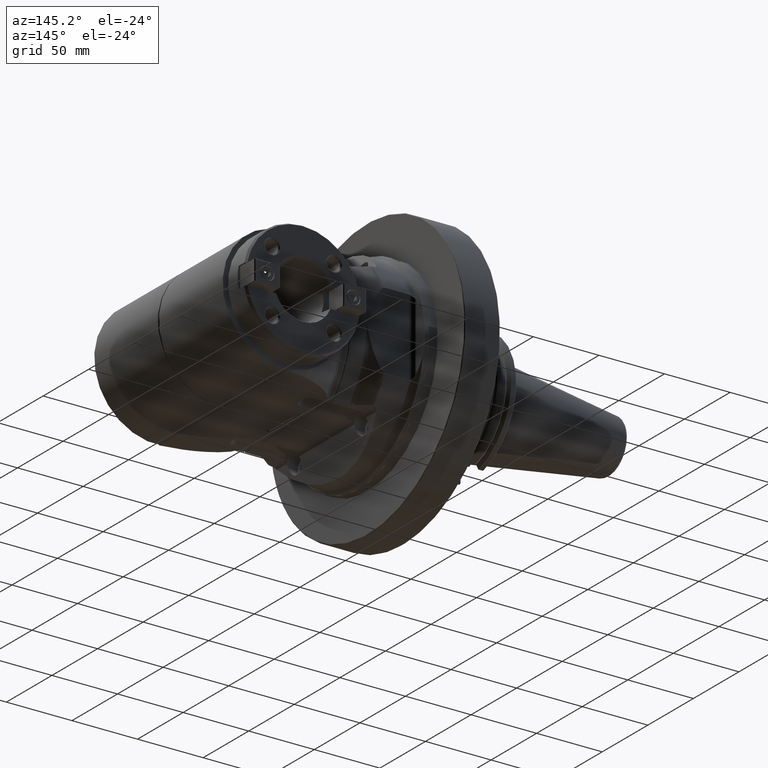
[diagram: clean part render]
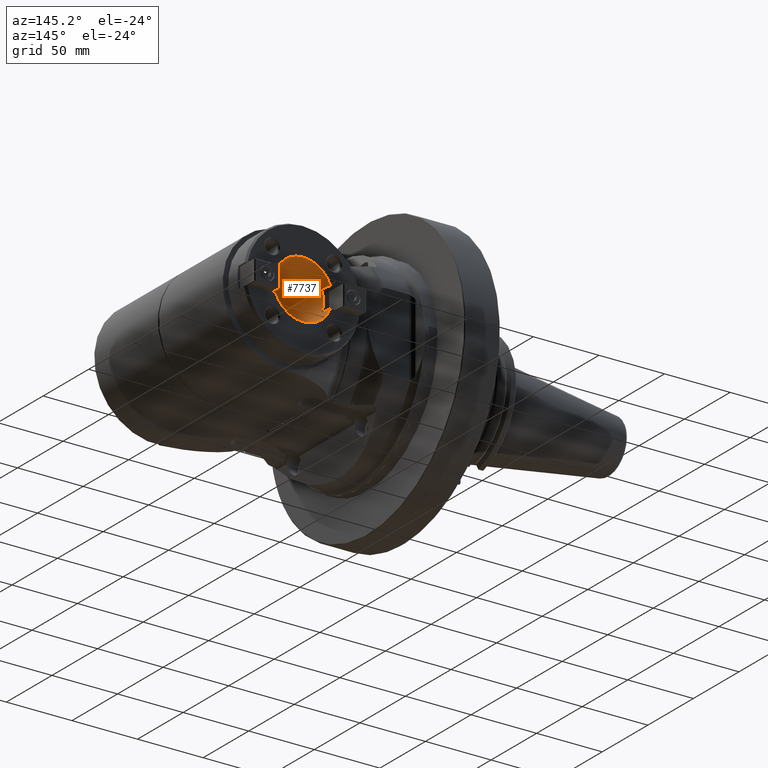
[diagram: same view with one face highlighted and labeled with its STEP entity id]
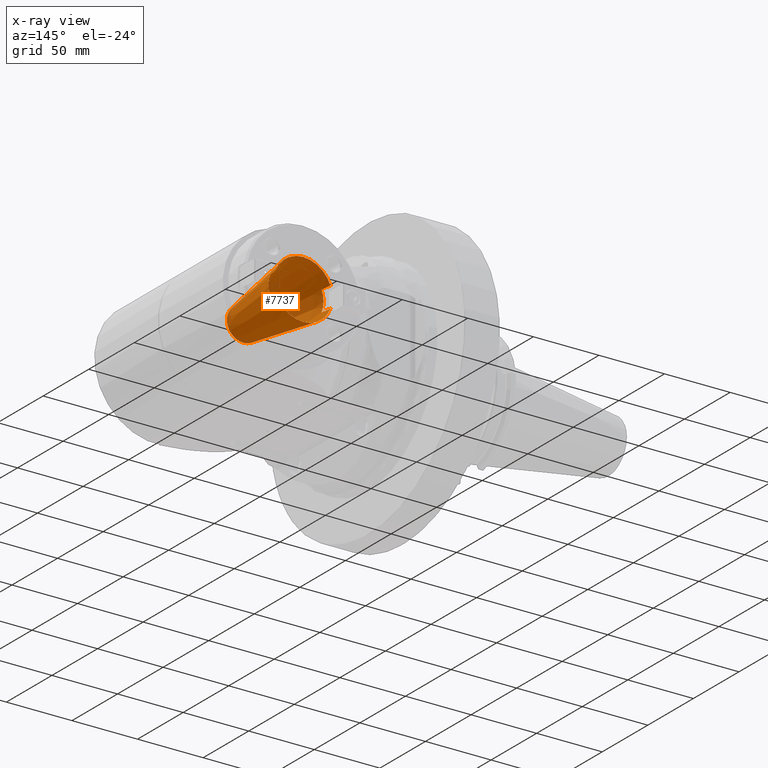
[diagram: x-ray of the same camera — body ghosted, the highlighted face saturated]
A machine part, auxiliary view. The second image highlights one B-rep face of the part: STEP entity #7737.
The next image is the same camera in x-ray: the body ghosted, the highlighted face saturated — about 5% of this face is hidden behind the body in this view.
In plain terms, the highlighted conical surface has half-angle 8.297 deg.
Its self-contained STEP definition (entity closure, byte-faithful):
#459=CONICAL_SURFACE('',#8679,17.43749997768,0.14481239404563);
#869=FACE_OUTER_BOUND('',#1385,.T.);
#1385=EDGE_LOOP('',(#6832,#6833,#6834,#6835,#6836,#6837,#6838,#6839,#6840,
#6841,#6842,#6843,#6844));
#1837=CIRCLE('',#8639,22.22499995537);
#1838=CIRCLE('',#8640,22.22499995537);
#1845=CIRCLE('',#8659,22.22499995537);
#1849=CIRCLE('',#8680,12.65);
#1850=CIRCLE('',#8681,21.05833418461);
#1851=CIRCLE('',#8682,21.05833418461);
#1852=CIRCLE('',#8683,12.65);
#2315=LINE('',#13981,#2815);
#2815=VECTOR('',#10822,17.43749997768);
#2983=(
BOUNDED_CURVE()
B_SPLINE_CURVE(2,(#13974,#13975,#13976),.UNSPECIFIED.,.F.,.F.)
B_SPLINE_CURVE_WITH_KNOTS((3,3),(-6.78852029854391,-6.20231524291867),
 .UNSPECIFIED.)
CURVE()
GEOMETRIC_REPRESENTATION_ITEM()
RATIONAL_B_SPLINE_CURVE((1.00114981680784,1.00588583737851,1.00979535053178))
REPRESENTATION_ITEM('')
);
#2984=(
BOUNDED_CURVE()
B_SPLINE_CURVE(2,(#13984,#13985,#13986),.UNSPECIFIED.,.F.,.F.)
B_SPLINE_CURVE_WITH_KNOTS((3,3),(6.20231524142966,6.78852029689591),
 .UNSPECIFIED.)
CURVE()
GEOMETRIC_REPRESENTATION_ITEM()
RATIONAL_B_SPLINE_CURVE((1.0097953504751,1.0058858373194,1.00114981674638))
REPRESENTATION_ITEM('')
);
#2985=(
BOUNDED_CURVE()
B_SPLINE_CURVE(2,(#13988,#13989,#13990),.UNSPECIFIED.,.F.,.F.)
B_SPLINE_CURVE_WITH_KNOTS((3,3),(0.0704216012168625,0.656626656842231),
 .UNSPECIFIED.)
CURVE()
GEOMETRIC_REPRESENTATION_ITEM()
RATIONAL_B_SPLINE_CURVE((1.00114981680784,1.00588583737849,1.00979535053175))
REPRESENTATION_ITEM('')
);
#2986=(
BOUNDED_CURVE()
B_SPLINE_CURVE(2,(#13993,#13994,#13995),.UNSPECIFIED.,.F.,.F.)
B_SPLINE_CURVE_WITH_KNOTS((3,3),(6.20231524291798,6.78852029854373),
 .UNSPECIFIED.)
CURVE()
GEOMETRIC_REPRESENTATION_ITEM()
RATIONAL_B_SPLINE_CURVE((1.00979535053173,1.00588583737848,1.00114981680784))
REPRESENTATION_ITEM('')
);
#3580=VERTEX_POINT('',#13790);
#3581=VERTEX_POINT('',#13792);
#3582=VERTEX_POINT('',#13794);
#3612=VERTEX_POINT('',#13878);
#3613=VERTEX_POINT('',#13880);
#3643=VERTEX_POINT('',#13972);
#3644=VERTEX_POINT('',#13978);
#3645=VERTEX_POINT('',#13979);
#3646=VERTEX_POINT('',#13982);
#3647=VERTEX_POINT('',#13987);
#3648=VERTEX_POINT('',#13991);
#4638=EDGE_CURVE('',#3580,#3581,#1837,.T.);
#4639=EDGE_CURVE('',#3581,#3582,#1838,.T.);
#4682=EDGE_CURVE('',#3612,#3613,#1845,.T.);
#4729=EDGE_CURVE('',#3580,#3643,#2983,.T.);
#4730=EDGE_CURVE('',#3644,#3645,#1849,.T.);
#4731=EDGE_CURVE('',#3645,#3581,#2315,.T.);
#4732=EDGE_CURVE('',#3646,#3643,#1850,.T.);
#4733=EDGE_CURVE('',#3646,#3613,#2984,.T.);
#4734=EDGE_CURVE('',#3612,#3647,#2985,.T.);
#4735=EDGE_CURVE('',#3648,#3647,#1851,.T.);
#4736=EDGE_CURVE('',#3648,#3582,#2986,.T.);
#4737=EDGE_CURVE('',#3645,#3644,#1852,.T.);
#6832=ORIENTED_EDGE('',*,*,#4730,.T.);
#6833=ORIENTED_EDGE('',*,*,#4731,.T.);
#6834=ORIENTED_EDGE('',*,*,#4638,.F.);
#6835=ORIENTED_EDGE('',*,*,#4729,.T.);
#6836=ORIENTED_EDGE('',*,*,#4732,.F.);
#6837=ORIENTED_EDGE('',*,*,#4733,.T.);
#6838=ORIENTED_EDGE('',*,*,#4682,.F.);
#6839=ORIENTED_EDGE('',*,*,#4734,.T.);
#6840=ORIENTED_EDGE('',*,*,#4735,.F.);
#6841=ORIENTED_EDGE('',*,*,#4736,.T.);
#6842=ORIENTED_EDGE('',*,*,#4639,.F.);
#6843=ORIENTED_EDGE('',*,*,#4731,.F.);
#6844=ORIENTED_EDGE('',*,*,#4737,.T.);
#7737=ADVANCED_FACE('',(#869),#459,.F.);
#8639=AXIS2_PLACEMENT_3D('',#13793,#10659,#10660);
#8640=AXIS2_PLACEMENT_3D('',#13795,#10661,#10662);
#8659=AXIS2_PLACEMENT_3D('',#13881,#10735,#10736);
#8679=AXIS2_PLACEMENT_3D('',#13977,#10818,#10819);
#8680=AXIS2_PLACEMENT_3D('',#13980,#10820,#10821);
#8681=AXIS2_PLACEMENT_3D('',#13983,#10823,#10824);
#8682=AXIS2_PLACEMENT_3D('',#13992,#10825,#10826);
#8683=AXIS2_PLACEMENT_3D('',#13996,#10827,#10828);
#10659=DIRECTION('center_axis',(0.,1.,4.660711595067E-9));
#10660=DIRECTION('ref_axis',(7.031053928434E-9,-4.660711595067E-9,1.));
#10661=DIRECTION('center_axis',(0.,1.,4.660711595067E-9));
#10662=DIRECTION('ref_axis',(7.031053928434E-9,-4.660711595067E-9,1.));
#10735=DIRECTION('center_axis',(0.,1.,4.660711595067E-9));
#10736=DIRECTION('ref_axis',(-7.031056486068E-9,4.660711595067E-9,-1.));
#10818=DIRECTION('center_axis',(0.,-1.,-4.660711595067E-9));
#10819=DIRECTION('ref_axis',(-7.031056736828E-9,4.660711595067E-9,-1.));
#10820=DIRECTION('center_axis',(0.,1.,4.660711595067E-9));
#10821=DIRECTION('ref_axis',(-7.031059090238E-9,4.660711595067E-9,-1.));
#10822=DIRECTION('',(1.01462921010916E-9,-0.989532996771661,0.144306785357084));
#10823=DIRECTION('center_axis',(0.,1.,4.660711595067E-9));
#10824=DIRECTION('ref_axis',(-0.926000316662606,1.75952457668071E-9,-0.377522732482102));
#10825=DIRECTION('center_axis',(0.,1.,4.660711595067E-9));
#10826=DIRECTION('ref_axis',(0.926000316662606,-1.75952457668071E-9,0.377522732482102));
#10827=DIRECTION('center_axis',(0.,1.,4.660711595067E-9));
#10828=DIRECTION('ref_axis',(-7.031059090238E-9,4.660711595067E-9,-1.));
#13790=CARTESIAN_POINT('',(72.2455276847828,-90.4999998329158,7.94999972244503));
#13792=CARTESIAN_POINT('',(93.0000001562652,-90.4999998984439,22.224999548286));
#13793=CARTESIAN_POINT('Origin',(93.,-90.49999969395,-4.217944233238E-7));
#13794=CARTESIAN_POINT('',(113.754472427014,-90.4999998329133,7.94999943059155));
#13795=CARTESIAN_POINT('Origin',(93.,-90.49999969395,-4.217944233238E-7));
#13878=CARTESIAN_POINT('',(113.754472315217,-90.4999997588093,-7.95000056603401));
#13880=CARTESIAN_POINT('',(72.2455275729858,-90.4999997588091,-7.95000027417983));
#13881=CARTESIAN_POINT('Origin',(93.,-90.49999969395,-4.217944233238E-7));
#13972=CARTESIAN_POINT('',(73.49997598846,-82.50000003705,7.949999752597));
#13974=CARTESIAN_POINT('Ctrl Pts',(72.2455276783569,-90.4999998319122,7.94999972413159));
#13975=CARTESIAN_POINT('Ctrl Pts',(72.8896581317775,-86.3753481923183,7.94999973882648));
#13976=CARTESIAN_POINT('Ctrl Pts',(73.4999759884646,-82.5000000370507,7.94999975259719));
#13977=CARTESIAN_POINT('Origin',(93.,-57.67140446458,-2.687898088886E-7));
#13978=CARTESIAN_POINT('',(92.99999991106,-24.84280917626,-12.65000011579));
#13979=CARTESIAN_POINT('',(93.0000000889429,-24.8428092941784,12.6499998842119));
#13980=CARTESIAN_POINT('Origin',(93.,-24.84280923522,-1.157851944533E-7));
#13981=CARTESIAN_POINT('',(93.000000122604,-57.6714045458512,17.4374997088902));
#13982=CARTESIAN_POINT('',(73.49997587667,-82.49999996295,-7.950000247403));
#13983=CARTESIAN_POINT('Origin',(93.,-82.5,-3.845087319897E-7));
#13984=CARTESIAN_POINT('Ctrl Pts',(73.4999758766699,-82.49999996295,-7.95000024740269));
#13985=CARTESIAN_POINT('Ctrl Pts',(72.8896580199832,-86.3753481182151,-7.95000026117339));
#13986=CARTESIAN_POINT('Ctrl Pts',(72.2455275665631,-90.4999997578061,-7.95000027586829));
#13987=CARTESIAN_POINT('',(112.5000240115,-82.49999996295,-7.950000521614));
#13988=CARTESIAN_POINT('Ctrl Pts',(113.754472321643,-90.4999997578058,-7.95000056772003));
#13989=CARTESIAN_POINT('Ctrl Pts',(113.110341868223,-86.375348118212,-7.9500005439673));
#13990=CARTESIAN_POINT('Ctrl Pts',(112.500024011535,-82.4999999629444,-7.95000052161424));
#13991=CARTESIAN_POINT('',(112.5000241233,-82.50000003705,7.949999478386));
#13992=CARTESIAN_POINT('Origin',(93.,-82.5,-3.845087319897E-7));
#13993=CARTESIAN_POINT('Ctrl Pts',(112.500024123328,-82.5000000370455,7.94999947838563));
#13994=CARTESIAN_POINT('Ctrl Pts',(113.110341980016,-86.3753481923148,7.94999945603257));
#13995=CARTESIAN_POINT('Ctrl Pts',(113.754472433437,-90.4999998319103,7.94999943227984));
#13996=CARTESIAN_POINT('Origin',(93.,-24.84280923522,-1.157851944533E-7));